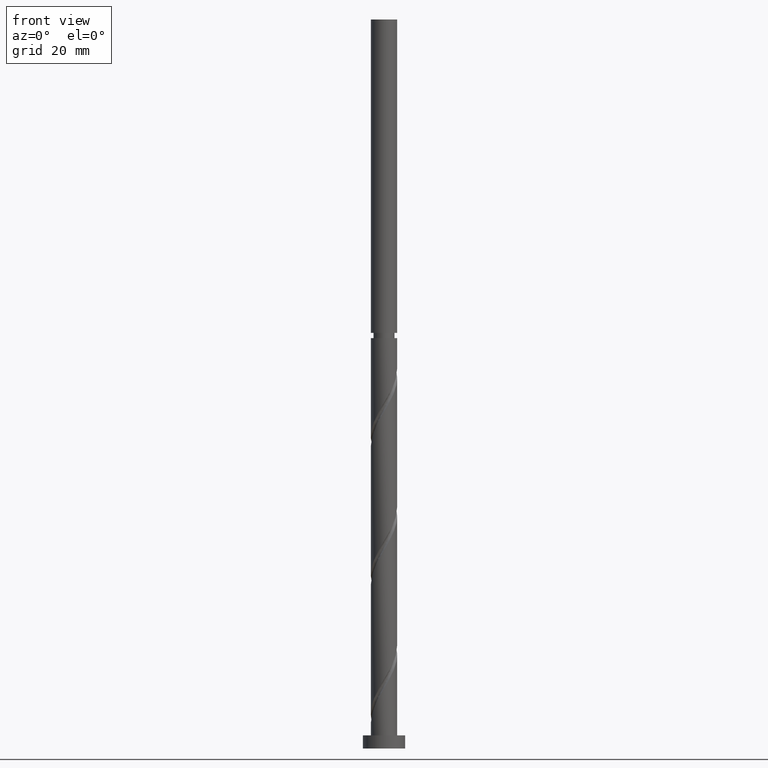
[diagram: clean part render]
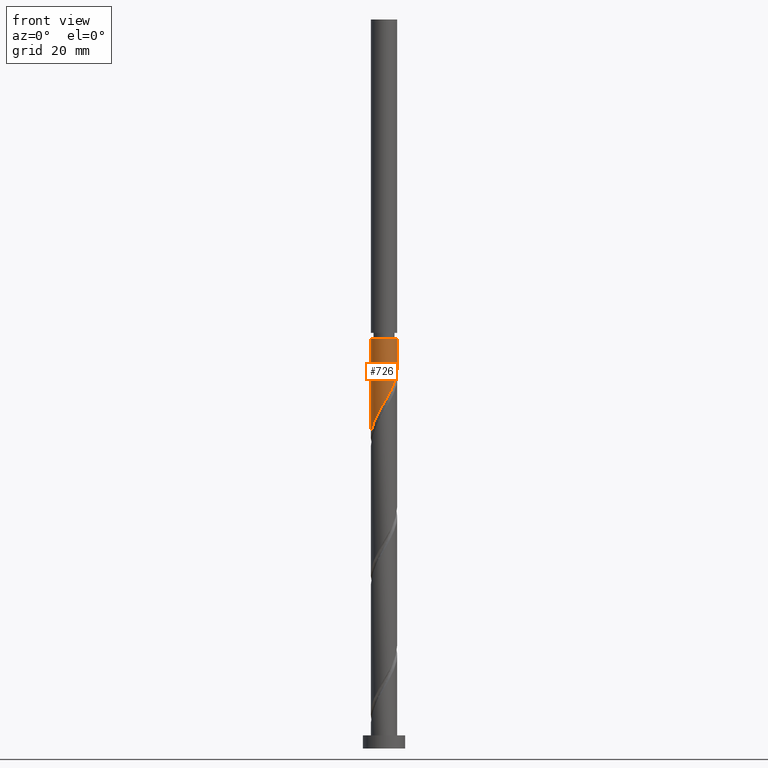
[diagram: same view with one face highlighted and labeled with its STEP entity id]
A machine part, front view. The second image highlights one B-rep face of the part: STEP entity #726.
In plain terms, the highlighted cylindrical surface (edge-blend (fillet) strip) has radius 5 mm, axis along (-0, -0, -1).
Its self-contained STEP definition (entity closure, byte-faithful):
#43 = CARTESIAN_POINT ( 'NONE',  ( -5.000000000000000000, 0.000000000000000000, 276.6500000000000341 ) ) ;
#51 = DIRECTION ( 'NONE',  ( -0.000000000000000000, -0.000000000000000000, -1.000000000000000000 ) ) ;
#58 = CARTESIAN_POINT ( 'NONE',  ( -2.060393601091442317, -4.555741235911170861, 127.5895295302218955 ) ) ;
#78 = CARTESIAN_POINT ( 'NONE',  ( -2.573702359565719355, -4.323590631524821148, 126.6520295302219239 ) ) ;
#113 = CARTESIAN_POINT ( 'NONE',  ( 0.000000000000000000, 0.000000000000000000, 155.7145295302219097 ) ) ;
#181 = ORIENTED_EDGE ( 'NONE', *, *, #2348, .T. ) ;
#227 = EDGE_CURVE ( 'NONE', #1285, #723, #988, .T. ) ;
#233 = CARTESIAN_POINT ( 'NONE',  ( 3.983038583135035449, -3.022483026463116840, 138.8395295302219097 ) ) ;
#256 = CARTESIAN_POINT ( 'NONE',  ( -1.547084842617165501, -4.787891840297520574, 128.5270295302219097 ) ) ;
#392 =( BOUNDED_CURVE ( )  B_SPLINE_CURVE ( 2, ( #1921, #621, #438, #1391, #1400, #1175, #233, #2125, #2133, #1200, #1716, #1355, #2101, #1381, #1946, #631, #798, #256, #58, #78, #1009, #1020, #413, #1767, #641, #810, #447, #983, #1534, #2321, #819 ),
 .UNSPECIFIED., .F., .T. ) 
 B_SPLINE_CURVE_WITH_KNOTS ( ( 3, 2, 2, 2, 2, 2, 2, 2, 2, 2, 2, 2, 2, 2, 2, 3 ),
 ( 0.3045303401299219725, 0.3125000000000000000, 0.3214285714285714524, 0.3303571428571428492, 0.3392857142857143016, 0.3482142857142856984, 0.3571428571428571508, 0.3660714285714285476, 0.3750000000000000000, 0.3839285714285714524, 0.3928571428571428492, 0.4017857142857143016, 0.4107142857142856984, 0.4196428571428571508, 0.4285714285714285476, 0.4295303401299221946 ),
 .UNSPECIFIED. ) 
 CURVE ( )  GEOMETRIC_REPRESENTATION_ITEM ( )  RATIONAL_B_SPLINE_CURVE ( ( 0.9079949616361838727, 0.9039886423360469214, 0.9090909090909136125, 0.9033747362665885960, 0.9090909090909136125, 0.9033747362665885960, 0.9090909090909136125, 0.9033747362665885960, 0.9090909090909136125, 0.9033747362665885960, 0.9090909090909136125, 0.9033747362665885960, 0.9090909090909136125, 0.9033747362665885960, 0.9090909090909136125, 0.9033747362665885960, 0.9090909090909136125, 0.9033747362665885960, 0.9090909090909136125, 0.9033747362665885960, 0.9090909090909136125, 0.9033747362665885960, 0.9090909090909136125, 0.9033747362665885960, 0.9090909090909136125, 0.9033747362665885960, 0.9090909090909136125, 0.9033747362665885960, 0.9090909090909136125, 0.9084770030214552872, 0.9079949616361835396 ) ) 
 REPRESENTATION_ITEM ( '' )  );
#413 = CARTESIAN_POINT ( 'NONE',  ( -3.833012532097928471, -3.210609744079808703, 123.8395295302219097 ) ) ;
#438 = CARTESIAN_POINT ( 'NONE',  ( 4.899999999999999467, -0.9949874371066214085, 142.5895295302219097 ) ) ;
#447 = CARTESIAN_POINT ( 'NONE',  ( -4.846456322308670295, -1.229577616888953173, 120.0895295302219239 ) ) ;
#486 = CIRCLE ( 'NONE', #875, 4.999999999999993783 ) ;
#533 = VERTEX_POINT ( 'NONE', #952 ) ;
#614 = CARTESIAN_POINT ( 'NONE',  ( 5.000000000000000000, 6.123233995736766282E-16, 276.6500000000000341 ) ) ;
#621 = CARTESIAN_POINT ( 'NONE',  ( 5.000000000000000888, -0.5025189076296033841, 143.4257755291644116 ) ) ;
#631 = CARTESIAN_POINT ( 'NONE',  ( -0.4428900315960770939, -5.012108159702480137, 130.4020295302219665 ) ) ;
#640 = DIRECTION ( 'NONE',  ( -0.000000000000000000, -0.000000000000000000, -1.000000000000000000 ) ) ;
#641 = CARTESIAN_POINT ( 'NONE',  ( -4.451338784106882329, -2.277187526117658400, 121.9645295302219381 ) ) ;
#694 = CARTESIAN_POINT ( 'NONE',  ( 0.000000000000000000, 0.000000000000000000, 276.6500000000000341 ) ) ;
#723 = VERTEX_POINT ( 'NONE', #1823 ) ;
#726 = ADVANCED_FACE ( 'NONE', ( #1642 ), #869, .T. ) ;
#796 = DIRECTION ( 'NONE',  ( -0.000000000000000000, -0.000000000000000000, -1.000000000000000000 ) ) ;
#798 = CARTESIAN_POINT ( 'NONE',  ( -0.9949874371066211864, -4.899999999999999467, 129.4645295302219381 ) ) ;
#810 = CARTESIAN_POINT ( 'NONE',  ( -4.707916197378419376, -1.775642098820951587, 121.0270295302219381 ) ) ;
#819 = CARTESIAN_POINT ( 'NONE',  ( -4.999999999999999112, 6.589729009753941734E-15, 118.0140466081279413 ) ) ;
#824 = CARTESIAN_POINT ( 'NONE',  ( -4.999999999999993783, 0.000000000000000000, 155.7145295302219097 ) ) ;
#869 = CYLINDRICAL_SURFACE ( 'NONE', #2299, 5.000000000000000000 ) ;
#875 = AXIS2_PLACEMENT_3D ( 'NONE', #113, #1089, #2020 ) ;
#916 = EDGE_CURVE ( 'NONE', #1285, #1290, #486, .T. ) ;
#952 = CARTESIAN_POINT ( 'NONE',  ( -4.999999999999999112, 6.589729009753941734E-15, 118.0140466081279413 ) ) ;
#957 = ORIENTED_EDGE ( 'NONE', *, *, #1711, .F. ) ;
#983 = CARTESIAN_POINT ( 'NONE',  ( -4.984996447238920325, -0.6835131349569548709, 119.1520295302219381 ) ) ;
#988 = LINE ( 'NONE', #614, #1538 ) ;
#1008 = DIRECTION ( 'NONE',  ( -1.000000000000000000, 0.000000000000000000, 0.000000000000000000 ) ) ;
#1009 = CARTESIAN_POINT ( 'NONE',  ( -3.022483026463116840, -3.983038583135035449, 125.7145295302218813 ) ) ;
#1020 = CARTESIAN_POINT ( 'NONE',  ( -3.471263693360513880, -3.642486534745251525, 124.7770295302219239 ) ) ;
#1089 = DIRECTION ( 'NONE',  ( -0.000000000000000000, -0.000000000000000000, -1.000000000000000000 ) ) ;
#1175 = CARTESIAN_POINT ( 'NONE',  ( 4.323590631524821148, -2.573702359565719799, 139.7770295302219665 ) ) ;
#1200 = CARTESIAN_POINT ( 'NONE',  ( 2.778732953414366769, -4.194761370835346170, 136.0270295302219665 ) ) ;
#1285 = VERTEX_POINT ( 'NONE', #1941 ) ;
#1290 = VERTEX_POINT ( 'NONE', #824 ) ;
#1355 = CARTESIAN_POINT ( 'NONE',  ( 1.775642098820951587, -4.707916197378419376, 134.1520295302219381 ) ) ;
#1381 = CARTESIAN_POINT ( 'NONE',  ( 0.6835131349569547599, -4.984996447238920325, 132.2770295302219097 ) ) ;
#1384 = VECTOR ( 'NONE', #796, 1000.000000000000000 ) ;
#1391 = CARTESIAN_POINT ( 'NONE',  ( 4.787891840297520574, -1.547084842617165945, 141.6520295302219097 ) ) ;
#1400 = CARTESIAN_POINT ( 'NONE',  ( 4.555741235911170861, -2.060393601091442761, 140.7145295302219097 ) ) ;
#1424 = EDGE_LOOP ( 'NONE', ( #2186, #2034, #181, #957 ) ) ;
#1534 = CARTESIAN_POINT ( 'NONE',  ( -4.998552303470700231, -0.1203115516804390411, 118.2145295302219523 ) ) ;
#1538 = VECTOR ( 'NONE', #51, 1000.000000000000000 ) ;
#1642 = FACE_OUTER_BOUND ( 'NONE', #1424, .T. ) ;
#1711 = EDGE_CURVE ( 'NONE', #723, #533, #392, .T. ) ;
#1716 = CARTESIAN_POINT ( 'NONE',  ( 2.277187526117658400, -4.451338784106882329, 135.0895295302218813 ) ) ;
#1727 = LINE ( 'NONE', #43, #1384 ) ;
#1767 = CARTESIAN_POINT ( 'NONE',  ( -4.194761370835346170, -2.778732953414366769, 122.9020295302219381 ) ) ;
#1823 = CARTESIAN_POINT ( 'NONE',  ( 5.000000000000000888, -2.462752631051869648E-16, 144.2640466081280124 ) ) ;
#1921 = CARTESIAN_POINT ( 'NONE',  ( 5.000000000000000888, -2.462752631051869648E-16, 144.2640466081280124 ) ) ;
#1941 = CARTESIAN_POINT ( 'NONE',  ( 4.999999999999993783, 6.123233995736762338E-16, 155.7145295302219097 ) ) ;
#1946 = CARTESIAN_POINT ( 'NONE',  ( 0.1203115516804388052, -4.998552303470700231, 131.3395295302219097 ) ) ;
#2020 = DIRECTION ( 'NONE',  ( -1.000000000000000000, 0.000000000000000000, 0.000000000000000000 ) ) ;
#2034 = ORIENTED_EDGE ( 'NONE', *, *, #916, .T. ) ;
#2101 = CARTESIAN_POINT ( 'NONE',  ( 1.229577616888953173, -4.846456322308670295, 133.2145295302219097 ) ) ;
#2125 = CARTESIAN_POINT ( 'NONE',  ( 3.642486534745251525, -3.471263693360513880, 137.9020295302219097 ) ) ;
#2133 = CARTESIAN_POINT ( 'NONE',  ( 3.210609744079808703, -3.833012532097928915, 136.9645295302219381 ) ) ;
#2186 = ORIENTED_EDGE ( 'NONE', *, *, #227, .F. ) ;
#2299 = AXIS2_PLACEMENT_3D ( 'NONE', #694, #640, #1008 ) ;
#2321 = CARTESIAN_POINT ( 'NONE',  ( -5.000000000000000000, -0.06016448583194186628, 118.1144092963530596 ) ) ;
#2348 = EDGE_CURVE ( 'NONE', #1290, #533, #1727, .T. ) ;